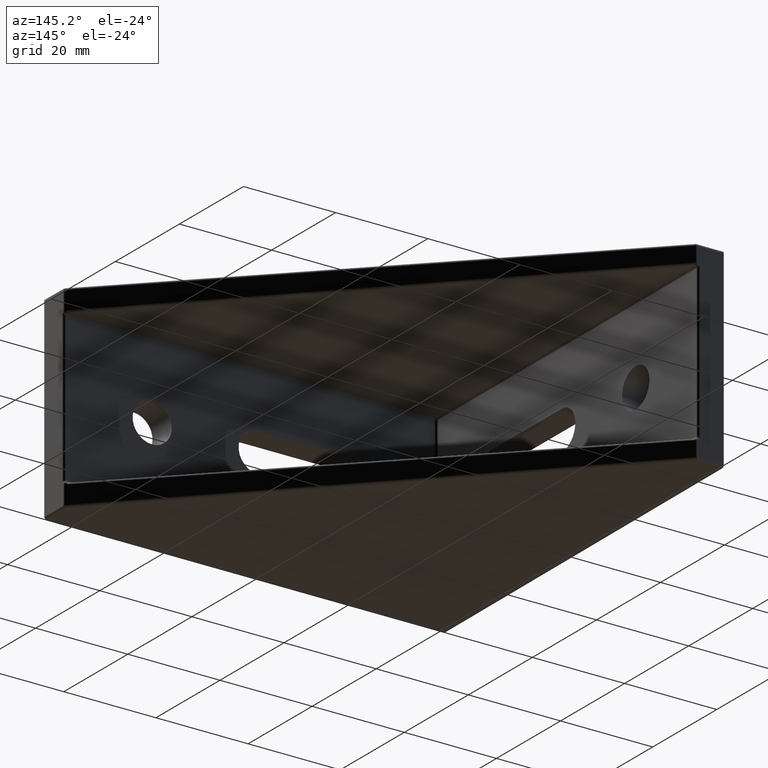
[diagram: clean part render]
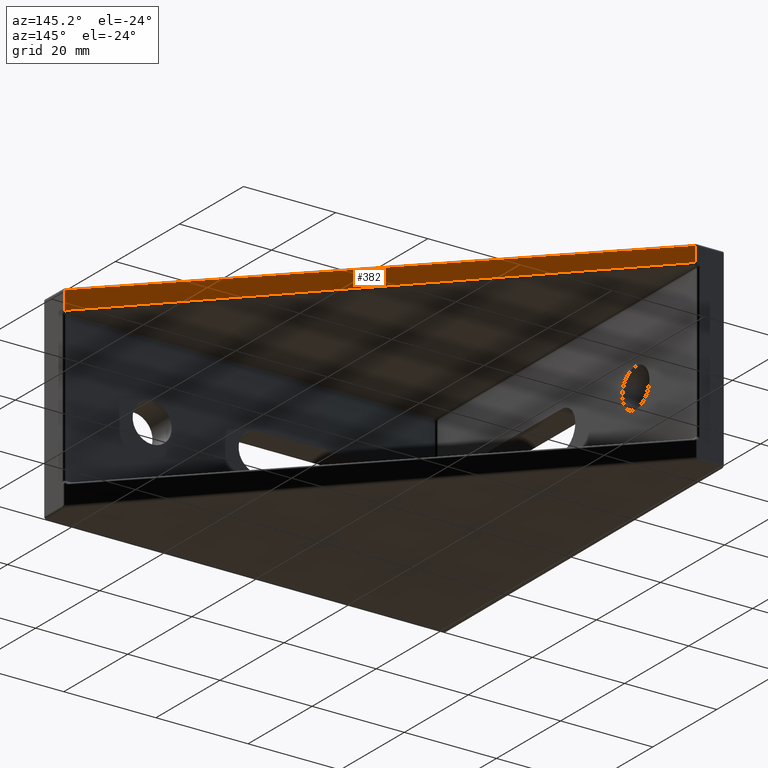
[diagram: same view with one face highlighted and labeled with its STEP entity id]
A machine part, auxiliary view. The second image highlights one B-rep face of the part: STEP entity #382.
In plain terms, the highlighted planar face has unit normal (-0.7071, -0.7071, 0).
Its self-contained STEP definition (entity closure, byte-faithful):
#311=CARTESIAN_POINT('',(-41.387639130693692,47.387639130693692,16.521754282571912));
#312=DIRECTION('',(-0.707106781186547,-0.707106781186548,0.0));
#313=DIRECTION('',(0.707106781186548,-0.707106781186547,0.0));
#314=AXIS2_PLACEMENT_3D('',#311,#312,#313);
#315=PLANE('',#314);
#316=CARTESIAN_POINT('',(-36.996151158112994,42.996151158112994,17.349695029427007));
#317=VERTEX_POINT('',#316);
#318=CARTESIAN_POINT('',(-37.353553390593284,43.353553390593277,17.285800534173227));
#319=VERTEX_POINT('',#318);
#320=CARTESIAN_POINT('',(-36.996151158112994,42.996151158112994,17.349695029427007));
#321=CARTESIAN_POINT('',(-37.118631522211750,43.118631522211743,17.350229454224209));
#322=CARTESIAN_POINT('',(-37.239090605601213,43.239090605601191,17.328694411539992));
#323=CARTESIAN_POINT('',(-37.353553390593284,43.353553390593277,17.285800534173227));
#331=(BOUNDED_CURVE()B_SPLINE_CURVE(3,(#320,#321,#322,#323),.UNSPECIFIED.,.F.,.U.)B_SPLINE_CURVE_WITH_KNOTS((4,4),(4.716733348114355,5.080546756459425),.UNSPECIFIED.)CURVE()GEOMETRIC_REPRESENTATION_ITEM()RATIONAL_B_SPLINE_CURVE((1.0,0.989000365445823,0.989000365445823,1.0))REPRESENTATION_ITEM(''));
#332=EDGE_CURVE('',#317,#319,#331,.T.);
#333=ORIENTED_EDGE('',*,*,#332,.T.);
#334=CARTESIAN_POINT('',(-37.353553390593284,43.353553390593277,20.622565394324369));
#335=VERTEX_POINT('',#334);
#336=CARTESIAN_POINT('',(-37.353553390593284,43.353553390593277,17.285800534173227));
#337=DIRECTION('',(0.0,0.0,1.0));
#338=VECTOR('',#337,3.336764860151142);
#339=LINE('',#336,#338);
#340=EDGE_CURVE('',#319,#335,#339,.T.);
#341=ORIENTED_EDGE('',*,*,#340,.T.);
#342=CARTESIAN_POINT('',(43.328161411414577,-37.328161411414527,20.974608020821318));
#343=VERTEX_POINT('',#342);
#344=CARTESIAN_POINT('',(-37.353553390593270,43.353553390593333,20.622565394324372));
#345=DIRECTION('',(0.707103415589059,-0.707103415589059,0.003085340268731));
#346=VECTOR('',#345,114.101718395455990);
#347=LINE('',#344,#346);
#348=EDGE_CURVE('',#335,#343,#347,.T.);
#349=ORIENTED_EDGE('',*,*,#348,.T.);
#350=CARTESIAN_POINT('',(43.328161411414577,-37.328161411414548,16.733794936774267));
#351=VERTEX_POINT('',#350);
#352=CARTESIAN_POINT('',(43.328161411414577,-37.328161411414527,20.974608020821318));
#353=DIRECTION('',(0.0,0.0,-1.0));
#354=VECTOR('',#353,4.240813084047051);
#355=LINE('',#352,#354);
#356=EDGE_CURVE('',#343,#351,#355,.T.);
#357=ORIENTED_EDGE('',*,*,#356,.T.);
#358=CARTESIAN_POINT('',(42.650809918691508,-36.650809918691458,17.002167396446143));
#359=VERTEX_POINT('',#358);
#360=CARTESIAN_POINT('',(43.328161411414577,-37.328161411414548,16.733794936774267));
#361=CARTESIAN_POINT('',(43.141950401072080,-37.141950401072052,16.907304607661434));
#362=CARTESIAN_POINT('',(42.905326937669436,-36.905326937669379,17.001056849402499));
#363=CARTESIAN_POINT('',(42.650809918691508,-36.650809918691458,17.002167396446143));
#371=(BOUNDED_CURVE()B_SPLINE_CURVE(3,(#360,#361,#362,#363),.UNSPECIFIED.,.F.,.U.)B_SPLINE_CURVE_WITH_KNOTS((4,4),(0.820692395097530,1.566433003664910),.UNSPECIFIED.)CURVE()GEOMETRIC_REPRESENTATION_ITEM()RATIONAL_B_SPLINE_CURVE((1.0,0.954190373435113,0.954190373435113,1.0))REPRESENTATION_ITEM(''));
#372=EDGE_CURVE('',#351,#359,#371,.T.);
#373=ORIENTED_EDGE('',*,*,#372,.T.);
#374=CARTESIAN_POINT('',(42.650809918691500,-36.650809918691508,17.002167396446143));
#375=DIRECTION('',(-0.707103415589059,0.707103415589059,0.003085340268731));
#376=VECTOR('',#375,112.638348678395100);
#377=LINE('',#374,#376);
#378=EDGE_CURVE('',#359,#317,#377,.T.);
#379=ORIENTED_EDGE('',*,*,#378,.T.);
#380=EDGE_LOOP('',(#333,#341,#349,#357,#373,#379));
#381=FACE_OUTER_BOUND('',#380,.T.);
#382=ADVANCED_FACE('',(#381),#315,.F.);